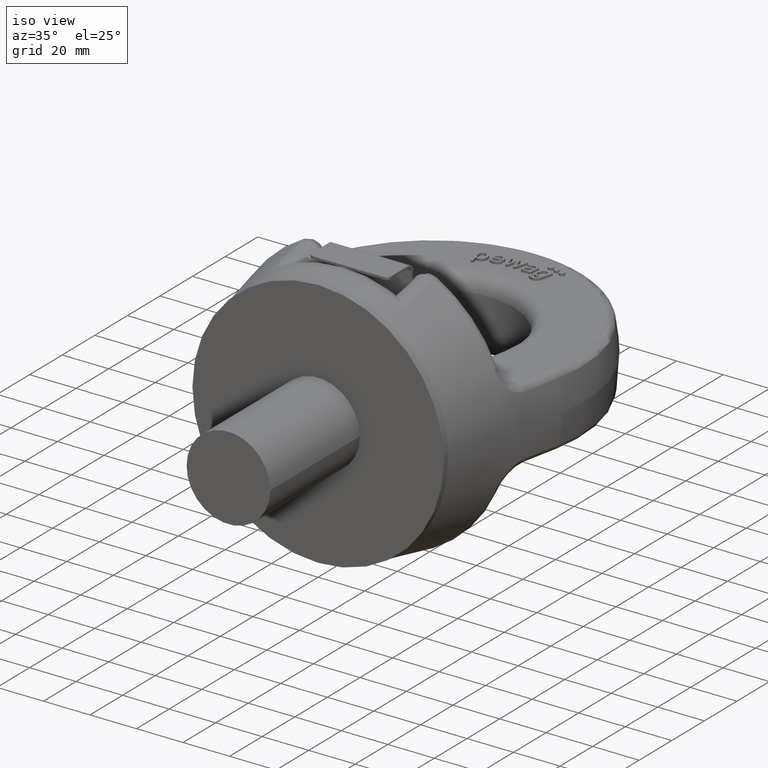
[diagram: clean part render]
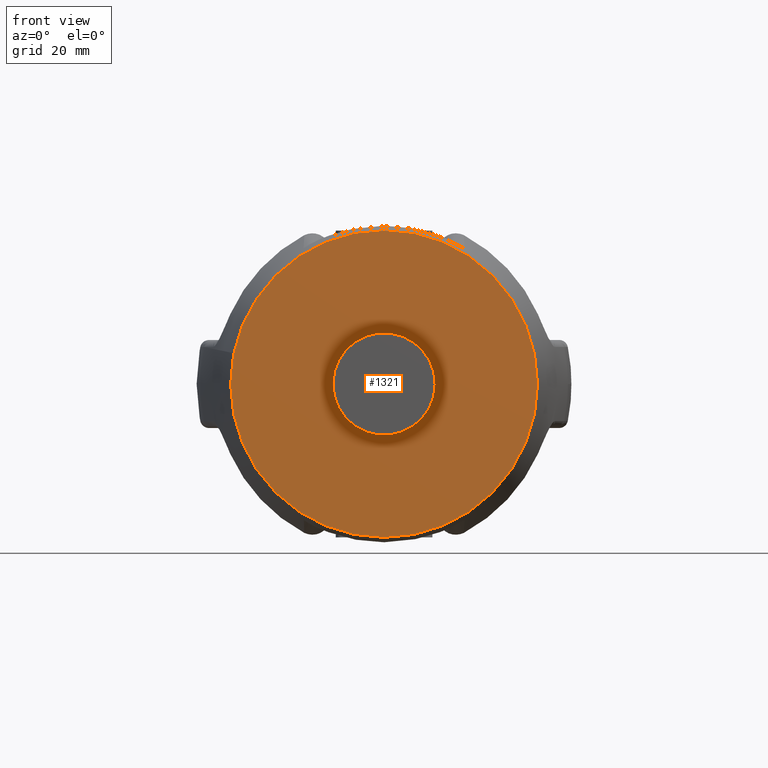
[diagram: tour spotlight — one face highlighted and labeled with its STEP entity id]
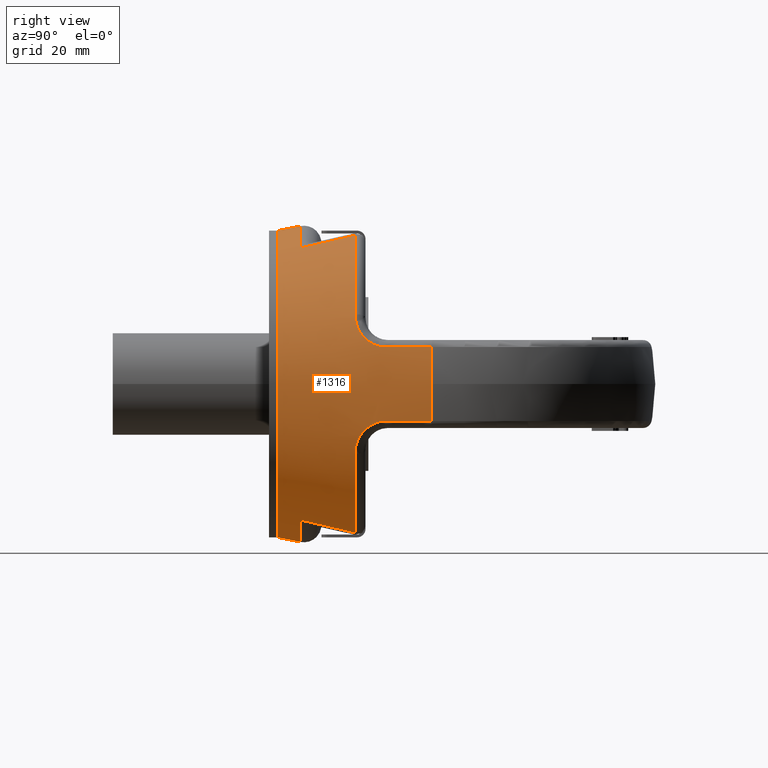
[diagram: tour spotlight — one face highlighted and labeled with its STEP entity id]
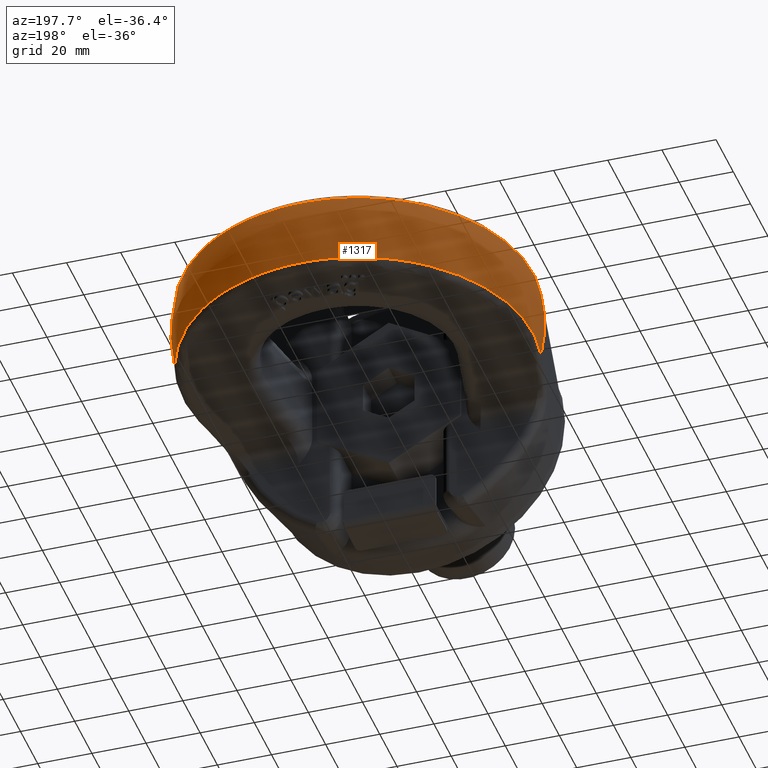
[diagram: tour spotlight — one face highlighted and labeled with its STEP entity id]
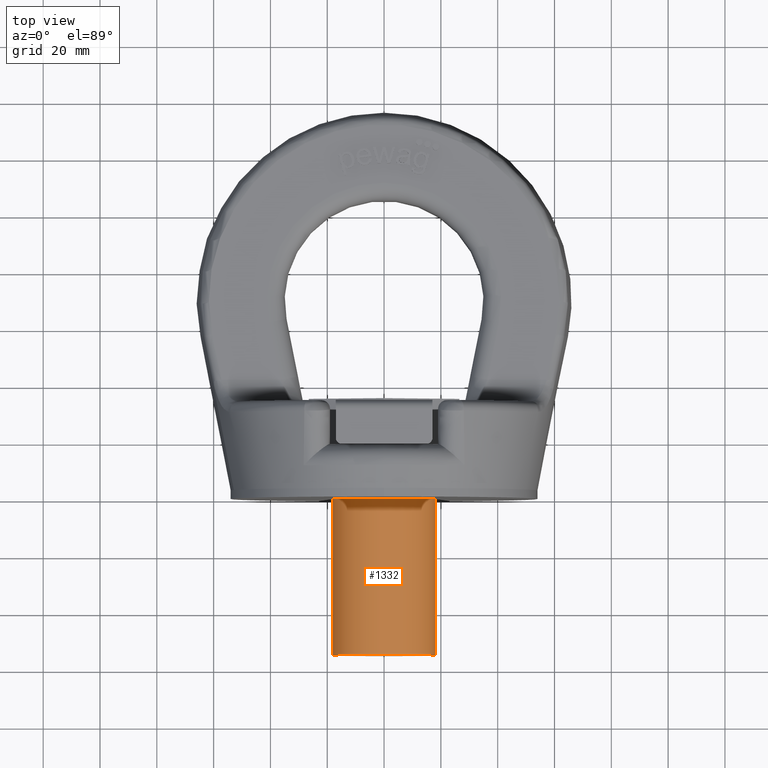
[diagram: tour spotlight — one face highlighted and labeled with its STEP entity id]
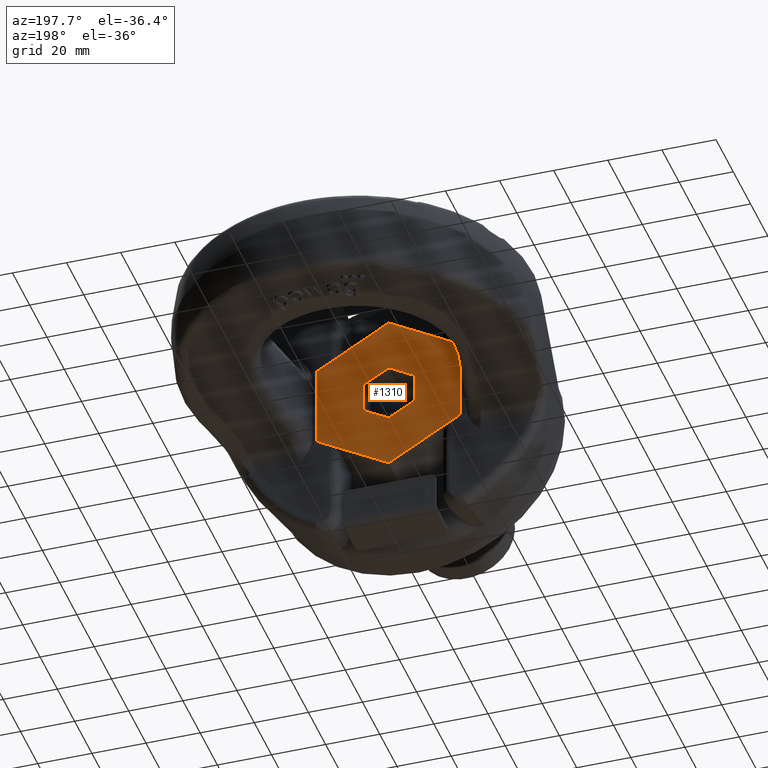
[diagram: tour spotlight — one face highlighted and labeled with its STEP entity id]
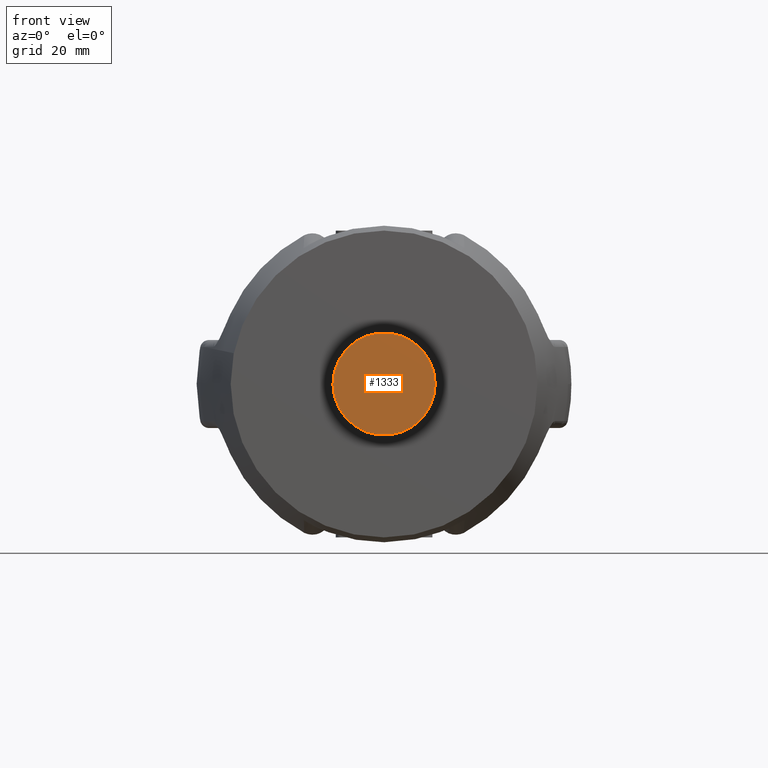
[diagram: tour spotlight — one face highlighted and labeled with its STEP entity id]
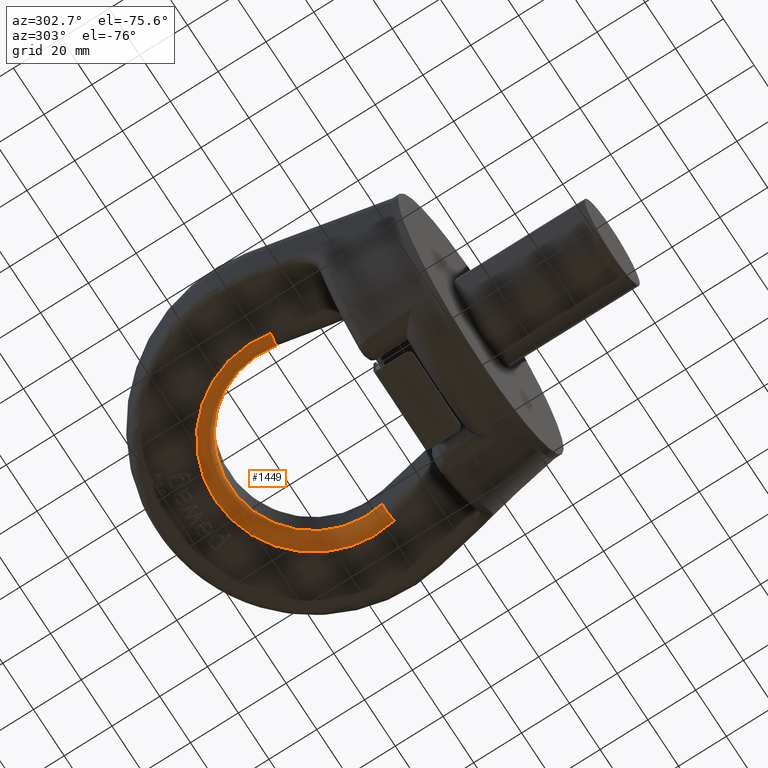
[diagram: tour spotlight — one face highlighted and labeled with its STEP entity id]
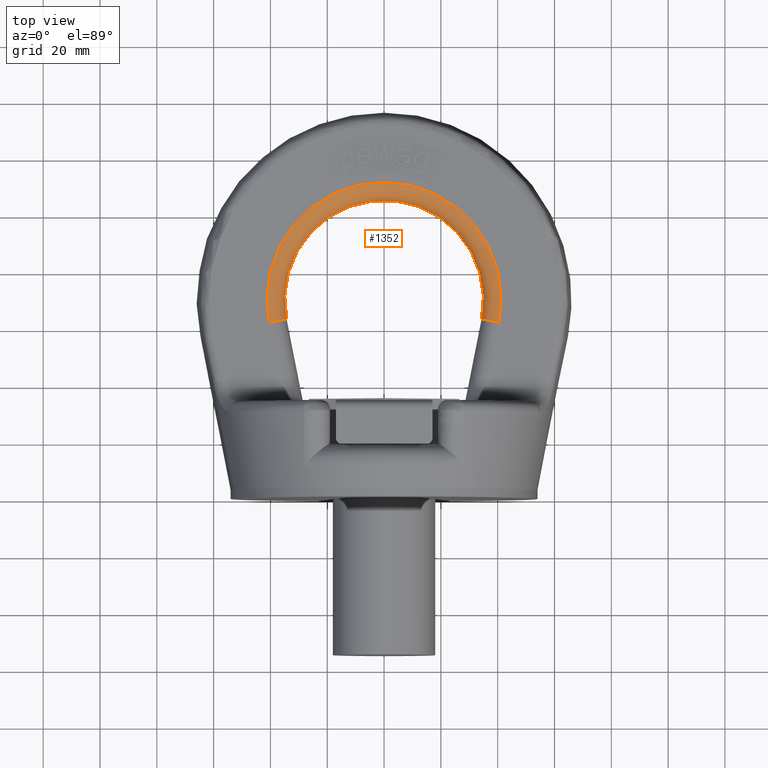
[diagram: tour spotlight — one face highlighted and labeled with its STEP entity id]
A machine part: a face-by-face anatomy tour. The part has 239 B-rep faces; the first image is the clean iso view, then the 8 largest visible faces are spotlighted one at a time (largest first), each with its STEP entity span.

Face 1 — front view, entity #1321. In plain terms, the highlighted planar face has unit normal (0, 1, 0).
Definition (entity closure, byte-faithful):
#1321=ADVANCED_FACE('',(#1769,#1770),#1557,.F.);
#1557=PLANE('',#5158);
#1689=CIRCLE('',#5156,54.0000000000001);
#1690=CIRCLE('',#5157,18.);
#1769=FACE_BOUND('',#1834,.T.);
#1770=FACE_BOUND('',#1835,.T.);
#1834=EDGE_LOOP('',(#2851));
#1835=EDGE_LOOP('',(#2852));
#2851=ORIENTED_EDGE('',*,*,#4407,.F.);
#2852=ORIENTED_EDGE('',*,*,#4408,.T.);
#4011=VERTEX_POINT('',#6893);
#4012=VERTEX_POINT('',#6895);
#4407=EDGE_CURVE('',#4011,#4011,#1689,.T.);
#4408=EDGE_CURVE('',#4012,#4012,#1690,.T.);
#5156=AXIS2_PLACEMENT_3D('',#6892,#5531,#5532);
#5157=AXIS2_PLACEMENT_3D('',#6894,#5533,#5534);
#5158=AXIS2_PLACEMENT_3D('',#6896,#5535,#5536);
#5531=DIRECTION('',(0.,1.,0.));
#5532=DIRECTION('',(0.,0.,1.));
#5533=DIRECTION('',(0.,1.,0.));
#5534=DIRECTION('',(1.,0.,6.12323399573677E-17));
#5535=DIRECTION('',(0.,1.,0.));
#5536=DIRECTION('',(0.,0.,1.));
#6892=CARTESIAN_POINT('',(-1.27403500852703E-13,0.,1.28408172764622E-14));
#6893=CARTESIAN_POINT('',(-1.27403500852703E-13,0.,54.0000000000001));
#6894=CARTESIAN_POINT('',(0.,0.,0.));
#6895=CARTESIAN_POINT('',(18.,0.,1.10218211923262E-15));
#6896=CARTESIAN_POINT('',(0.,0.,0.));

Face 2 — right view, entity #1316. In plain terms, the highlighted conical surface has half-angle 11.215 deg.
Definition (entity closure, byte-faithful):
#1090=CONICAL_SURFACE('',#5143,53.4051529903416,11.2152716127686);
#1316=ADVANCED_FACE('',(#1767,#1768),#1090,.T.);
#1676=CIRCLE('',#5134,64.7396210534805);
#1677=CIRCLE('',#5135,59.4125254317);
#1678=CIRCLE('',#5136,55.604922213692);
#1679=CIRCLE('',#5137,59.4125254317);
#1680=CIRCLE('',#5138,64.7396210534805);
#1681=CIRCLE('',#5139,59.4125254317);
#1682=CIRCLE('',#5140,55.604922213692);
#1683=CIRCLE('',#5141,59.4125254317);
#1684=CIRCLE('',#5142,54.0000000000001);
#1767=FACE_BOUND('',#1828,.T.);
#1768=FACE_BOUND('',#1829,.T.);
#1828=EDGE_LOOP('',(#2810,#2811,#2812,#2813,#2814,#2815,#2816,#2817,#2818,
#2819,#2820,#2821,#2822,#2823,#2824,#2825,#2826,#2827,#2828,#2829));
#1829=EDGE_LOOP('',(#2830));
#2810=ORIENTED_EDGE('',*,*,#4372,.T.);
#2811=ORIENTED_EDGE('',*,*,#4373,.T.);
#2812=ORIENTED_EDGE('',*,*,#4374,.T.);
#2813=ORIENTED_EDGE('',*,*,#4375,.T.);
#2814=ORIENTED_EDGE('',*,*,#4376,.T.);
#2815=ORIENTED_EDGE('',*,*,#4377,.T.);
#2816=ORIENTED_EDGE('',*,*,#4378,.T.);
#2817=ORIENTED_EDGE('',*,*,#4379,.T.);
#2818=ORIENTED_EDGE('',*,*,#4380,.T.);
#2819=ORIENTED_EDGE('',*,*,#4381,.T.);
#2820=ORIENTED_EDGE('',*,*,#4382,.T.);
#2821=ORIENTED_EDGE('',*,*,#4383,.T.);
#2822=ORIENTED_EDGE('',*,*,#4384,.T.);
#2823=ORIENTED_EDGE('',*,*,#4385,.T.);
#2824=ORIENTED_EDGE('',*,*,#4386,.T.);
#2825=ORIENTED_EDGE('',*,*,#4387,.T.);
#2826=ORIENTED_EDGE('',*,*,#4388,.T.);
#2827=ORIENTED_EDGE('',*,*,#4389,.T.);
#2828=ORIENTED_EDGE('',*,*,#4390,.T.);
#2829=ORIENTED_EDGE('',*,*,#4391,.T.);
#2830=ORIENTED_EDGE('',*,*,#4392,.F.);
#3982=VERTEX_POINT('',#6756);
#3983=VERTEX_POINT('',#6757);
#3984=VERTEX_POINT('',#6765);
#3985=VERTEX_POINT('',#6772);
#3986=VERTEX_POINT('',#6774);
#3987=VERTEX_POINT('',#6782);
#3988=VERTEX_POINT('',#6784);
#3989=VERTEX_POINT('',#6792);
#3990=VERTEX_POINT('',#6794);
#3991=VERTEX_POINT('',#6801);
#3992=VERTEX_POINT('',#6809);
#3993=VERTEX_POINT('',#6811);
#3994=VERTEX_POINT('',#6819);
#3995=VERTEX_POINT('',#6826);
#3996=VERTEX_POINT('',#6828);
#3997=VERTEX_POINT('',#6836);
#3998=VERTEX_POINT('',#6838);
#3999=VERTEX_POINT('',#6846);
#4000=VERTEX_POINT('',#6848);
#4001=VERTEX_POINT('',#6855);
#4002=VERTEX_POINT('',#6864);
#4372=EDGE_CURVE('',#3982,#3983,#1676,.T.);
#4373=EDGE_CURVE('',#3983,#3984,#4887,.T.);
#4374=EDGE_CURVE('',#3984,#3985,#4888,.T.);
#4375=EDGE_CURVE('',#3985,#3986,#1677,.T.);
#4376=EDGE_CURVE('',#3986,#3987,#4889,.T.);
#4377=EDGE_CURVE('',#3987,#3988,#1678,.T.);
#4378=EDGE_CURVE('',#3988,#3989,#4890,.T.);
#4379=EDGE_CURVE('',#3989,#3990,#1679,.T.);
#4380=EDGE_CURVE('',#3990,#3991,#4891,.T.);
#4381=EDGE_CURVE('',#3991,#3992,#4892,.T.);
#4382=EDGE_CURVE('',#3992,#3993,#1680,.T.);
#4383=EDGE_CURVE('',#3993,#3994,#4893,.T.);
#4384=EDGE_CURVE('',#3994,#3995,#4894,.T.);
#4385=EDGE_CURVE('',#3995,#3996,#1681,.T.);
#4386=EDGE_CURVE('',#3996,#3997,#4895,.T.);
#4387=EDGE_CURVE('',#3997,#3998,#1682,.T.);
#4388=EDGE_CURVE('',#3998,#3999,#4896,.T.);
#4389=EDGE_CURVE('',#3999,#4000,#1683,.T.);
#4390=EDGE_CURVE('',#4000,#4001,#4897,.T.);
#4391=EDGE_CURVE('',#4001,#3982,#4898,.T.);
#4392=EDGE_CURVE('',#4002,#4002,#1684,.T.);
#4887=B_SPLINE_CURVE_WITH_KNOTS('',3,(#6758,#6759,#6760,#6761,#6762,#6763,
#6764),.UNSPECIFIED.,.F.,.F.,(4,3,4),(0.,0.379363139222481,1.),
 .UNSPECIFIED.);
#4888=B_SPLINE_CURVE_WITH_KNOTS('',3,(#6766,#6767,#6768,#6769,#6770,#6771),
 .UNSPECIFIED.,.F.,.F.,(4,2,4),(0.,0.5,1.),.UNSPECIFIED.);
#4889=B_SPLINE_CURVE_WITH_KNOTS('',3,(#6775,#6776,#6777,#6778,#6779,#6780,
#6781),.UNSPECIFIED.,.F.,.F.,(4,3,4),(0.,0.244249562483357,1.),
 .UNSPECIFIED.);
#4890=B_SPLINE_CURVE_WITH_KNOTS('',3,(#6785,#6786,#6787,#6788,#6789,#6790,
#6791),.UNSPECIFIED.,.F.,.F.,(4,3,4),(0.,0.755750437516643,1.),
 .UNSPECIFIED.);
#4891=B_SPLINE_CURVE_WITH_KNOTS('',3,(#6795,#6796,#6797,#6798,#6799,#6800),
 .UNSPECIFIED.,.F.,.F.,(4,2,4),(0.,0.5,1.),.UNSPECIFIED.);
#4892=B_SPLINE_CURVE_WITH_KNOTS('',3,(#6802,#6803,#6804,#6805,#6806,#6807,
#6808),.UNSPECIFIED.,.F.,.F.,(4,3,4),(0.,0.379363140123715,1.),
 .UNSPECIFIED.);
#4893=B_SPLINE_CURVE_WITH_KNOTS('',3,(#6812,#6813,#6814,#6815,#6816,#6817,
#6818),.UNSPECIFIED.,.F.,.F.,(4,3,4),(0.,0.379363139222481,1.),
 .UNSPECIFIED.);
#4894=B_SPLINE_CURVE_WITH_KNOTS('',3,(#6820,#6821,#6822,#6823,#6824,#6825),
 .UNSPECIFIED.,.F.,.F.,(4,2,4),(0.,0.5,1.),.UNSPECIFIED.);
#4895=B_SPLINE_CURVE_WITH_KNOTS('',3,(#6829,#6830,#6831,#6832,#6833,#6834,
#6835),.UNSPECIFIED.,.F.,.F.,(4,3,4),(0.,0.244249562483357,1.),
 .UNSPECIFIED.);
#4896=B_SPLINE_CURVE_WITH_KNOTS('',3,(#6839,#6840,#6841,#6842,#6843,#6844,
#6845),.UNSPECIFIED.,.F.,.F.,(4,3,4),(0.,0.755750437516643,1.),
 .UNSPECIFIED.);
#4897=B_SPLINE_CURVE_WITH_KNOTS('',3,(#6849,#6850,#6851,#6852,#6853,#6854),
 .UNSPECIFIED.,.F.,.F.,(4,2,4),(0.,0.5,1.),.UNSPECIFIED.);
#4898=B_SPLINE_CURVE_WITH_KNOTS('',3,(#6856,#6857,#6858,#6859,#6860,#6861,
#6862),.UNSPECIFIED.,.F.,.F.,(4,3,4),(0.,0.379363140123715,1.),
 .UNSPECIFIED.);
#5134=AXIS2_PLACEMENT_3D('',#6755,#5481,#5482);
#5135=AXIS2_PLACEMENT_3D('',#6773,#5483,#5484);
#5136=AXIS2_PLACEMENT_3D('',#6783,#5485,#5486);
#5137=AXIS2_PLACEMENT_3D('',#6793,#5487,#5488);
#5138=AXIS2_PLACEMENT_3D('',#6810,#5489,#5490);
#5139=AXIS2_PLACEMENT_3D('',#6827,#5491,#5492);
#5140=AXIS2_PLACEMENT_3D('',#6837,#5493,#5494);
#5141=AXIS2_PLACEMENT_3D('',#6847,#5495,#5496);
#5142=AXIS2_PLACEMENT_3D('',#6863,#5497,#5498);
#5143=AXIS2_PLACEMENT_3D('',#6865,#5499,#5500);
#5481=DIRECTION('',(-9.36790447446346E-16,-1.,0.));
#5482=DIRECTION('',(1.,-9.646340852625E-16,0.));
#5483=DIRECTION('',(0.,-1.,0.));
#5484=DIRECTION('',(-2.34291072916505E-15,0.,1.));
#5485=DIRECTION('',(-1.82602471155453E-16,-1.,-4.27821288842163E-31));
#5486=DIRECTION('',(-1.,1.87183803906085E-16,-2.34291072916505E-15));
#5487=DIRECTION('',(0.,-1.,0.));
#5488=DIRECTION('',(-2.34291072916505E-15,0.,1.));
#5489=DIRECTION('',(-9.36790447446346E-16,-1.,0.));
#5490=DIRECTION('',(1.,-9.646340852625E-16,0.));
#5491=DIRECTION('',(0.,-1.,0.));
#5492=DIRECTION('',(0.,0.,-1.));
#5493=DIRECTION('',(1.82602471155453E-16,-1.,0.));
#5494=DIRECTION('',(1.,1.87183803906085E-16,0.));
#5495=DIRECTION('',(0.,-1.,0.));
#5496=DIRECTION('',(0.,0.,-1.));
#5497=DIRECTION('',(0.,-1.,0.));
#5498=DIRECTION('',(0.,0.,1.));
#5499=DIRECTION('',(9.36790447446346E-16,1.,0.));
#5500=DIRECTION('',(-1.,6.61667586243656E-16,0.));
#6755=CARTESIAN_POINT('',(-7.38534893235432E-14,57.1632766699694,0.));
#6756=CARTESIAN_POINT('',(-63.4186807031407,57.1632766699695,13.0111287758347));
#6757=CARTESIAN_POINT('',(-63.4186807031405,57.1632766699693,-13.0111287758348));
#6758=CARTESIAN_POINT('',(-63.4186807031405,57.1632766699693,-13.0111287758348));
#6759=CARTESIAN_POINT('',(-63.0078934406737,55.1378509972426,-13.01510669734));
#6760=CARTESIAN_POINT('',(-62.5969211799906,53.1124629856776,-13.0191621927448));
#6761=CARTESIAN_POINT('',(-62.1857517138848,51.0871151875316,-13.0232999810817));
#6762=CARTESIAN_POINT('',(-61.5130798130041,47.7736528182886,-13.0300693892586));
#6763=CARTESIAN_POINT('',(-60.839880550286,44.4602978964335,-13.0370588885096));
#6764=CARTESIAN_POINT('',(-60.1660939651095,41.1470629951046,-13.0442914374048));
#6765=CARTESIAN_POINT('',(-60.1660939651095,41.1470629951046,-13.0442914374048));
#6766=CARTESIAN_POINT('',(-60.1660939651095,41.1470629951046,-13.0442914374048));
#6767=CARTESIAN_POINT('',(-59.5423652720733,38.0799795592027,-13.0509866556964));
#6768=CARTESIAN_POINT('',(-58.680193108066,35.2136003947081,-14.4564697578865));
#6769=CARTESIAN_POINT('',(-56.6077832522743,31.2998081939542,-18.8358735027217));
#6770=CARTESIAN_POINT('',(-55.4106888689562,30.2970629951046,-21.6619016092632));
#6771=CARTESIAN_POINT('',(-54.1238838436104,30.2970629951046,-24.5041501761592));
#6772=CARTESIAN_POINT('',(-54.1238838436104,30.2970629951046,-24.5041501761592));
#6773=CARTESIAN_POINT('',(9.90215016532088E-14,30.2970629951047,2.31998538641337E-28));
#6774=CARTESIAN_POINT('',(-28.0736861446427,30.2970629951046,-52.3614010930236));
#6775=CARTESIAN_POINT('',(-28.0736861446427,30.2970629951046,-52.3614010930236));
#6776=CARTESIAN_POINT('',(-28.0904026339223,28.7324720021094,-52.0004312589697));
#6777=CARTESIAN_POINT('',(-28.1074080673949,27.1681330642224,-51.638380207237));
#6778=CARTESIAN_POINT('',(-28.1247177290099,25.6040670392467,-51.2751702368287));
#6779=CARTESIAN_POINT('',(-28.1782766823272,20.7645883087915,-50.1513385708942));
#6780=CARTESIAN_POINT('',(-28.234740287178,15.9276825011773,-49.0164714114988));
#6781=CARTESIAN_POINT('',(-28.2946296575564,11.0941259902093,-47.8677480871251));
#6782=CARTESIAN_POINT('',(-28.2946296575564,11.0941259902093,-47.8677480871251));
#6783=CARTESIAN_POINT('',(1.17010629602309E-13,11.0941259902092,2.74145459521607E-28));
#6784=CARTESIAN_POINT('',(28.2946296575566,11.0941259902093,-47.8677480871251));
#6785=CARTESIAN_POINT('',(28.2946296575566,11.0941259902093,-47.8677480871251));
#6786=CARTESIAN_POINT('',(28.2347402871782,15.9276825011773,-49.0164714114988));
#6787=CARTESIAN_POINT('',(28.1782766823274,20.7645883087915,-50.1513385708942));
#6788=CARTESIAN_POINT('',(28.1247177290101,25.6040670392467,-51.2751702368287));
#6789=CARTESIAN_POINT('',(28.1074080673952,27.1681330642224,-51.638380207237));
#6790=CARTESIAN_POINT('',(28.0904026339225,28.7324720021094,-52.0004312589697));
#6791=CARTESIAN_POINT('',(28.0736861446429,30.2970629951046,-52.3614010930235));
#6792=CARTESIAN_POINT('',(28.0736861446429,30.2970629951046,-52.3614010930235));
#6793=CARTESIAN_POINT('',(9.90215016532088E-14,30.2970629951047,2.31998538641337E-28));
#6794=CARTESIAN_POINT('',(54.1238838436106,30.2970629951046,-24.5041501761589));
#6795=CARTESIAN_POINT('',(54.1238838436106,30.2970629951046,-24.5041501761589));
#6796=CARTESIAN_POINT('',(55.409630876261,30.2970629951046,-21.6642384654013));
#6797=CARTESIAN_POINT('',(56.621911743511,31.3239687166793,-18.8052768057178));
#6798=CARTESIAN_POINT('',(58.6725508100254,35.2016971793536,-14.47336221587));
#6799=CARTESIAN_POINT('',(59.5430873840609,38.0835304263349,-13.0509789044135));
#6800=CARTESIAN_POINT('',(60.1660939651097,41.1470629951046,-13.0442914374045));
#6801=CARTESIAN_POINT('',(60.1660939651097,41.1470629951046,-13.0442914374045));
#6802=CARTESIAN_POINT('',(60.1660939651097,41.1470629951046,-13.0442914374045));
#6803=CARTESIAN_POINT('',(60.577944780553,43.1722717568818,-13.0398705551463));
#6804=CARTESIAN_POINT('',(60.9895759875954,45.1975253897035,-13.0355405413444));
#6805=CARTESIAN_POINT('',(61.4010016648464,47.2228209393158,-13.0312960178713));
#6806=CARTESIAN_POINT('',(62.0740927250081,50.5361978236598,-13.0243519913742));
#6807=CARTESIAN_POINT('',(62.7466340864869,53.8496868997662,-13.017636642395));
#6808=CARTESIAN_POINT('',(63.4186807031407,57.1632766699695,-13.0111287758345));
#6809=CARTESIAN_POINT('',(63.4186807031407,57.1632766699695,-13.0111287758345));
#6810=CARTESIAN_POINT('',(-7.38534893235432E-14,57.1632766699694,0.));
#6811=CARTESIAN_POINT('',(63.4186807031406,57.1632766699693,13.0111287758347));
#6812=CARTESIAN_POINT('',(63.4186807031406,57.1632766699693,13.0111287758347));
#6813=CARTESIAN_POINT('',(63.0078934406738,55.1378509972426,13.0151066973399));
#6814=CARTESIAN_POINT('',(62.5969211799906,53.1124629856776,13.0191621927447));
#6815=CARTESIAN_POINT('',(62.1857517138848,51.0871151875316,13.0232999810815));
#6816=CARTESIAN_POINT('',(61.5130798130041,47.7736528182886,13.0300693892585));
#6817=CARTESIAN_POINT('',(60.839880550286,44.4602978964335,13.0370588885095));
#6818=CARTESIAN_POINT('',(60.1660939651095,41.1470629951046,13.0442914374046));
#6819=CARTESIAN_POINT('',(60.1660939651095,41.1470629951046,13.0442914374046));
#6820=CARTESIAN_POINT('',(60.1660939651095,41.1470629951046,13.0442914374046));
#6821=CARTESIAN_POINT('',(59.5423652720733,38.0799795592027,13.0509866556962));
#6822=CARTESIAN_POINT('',(58.680193108066,35.2136003947081,14.4564697578864));
#6823=CARTESIAN_POINT('',(56.6077832522743,31.2998081939542,18.8358735027216));
#6824=CARTESIAN_POINT('',(55.4106888689563,30.2970629951046,21.6619016092631));
#6825=CARTESIAN_POINT('',(54.1238838436104,30.2970629951046,24.5041501761591));
#6826=CARTESIAN_POINT('',(54.1238838436104,30.2970629951046,24.5041501761591));
#6827=CARTESIAN_POINT('',(-9.90215016532088E-14,30.2970629951047,0.));
#6828=CARTESIAN_POINT('',(28.0736861446428,30.2970629951046,52.3614010930235));
#6829=CARTESIAN_POINT('',(28.0736861446428,30.2970629951046,52.3614010930235));
#6830=CARTESIAN_POINT('',(28.0904026339224,28.7324720021094,52.0004312589696));
#6831=CARTESIAN_POINT('',(28.107408067395,27.1681330642224,51.6383802072369));
#6832=CARTESIAN_POINT('',(28.12471772901,25.6040670392467,51.2751702368287));
#6833=CARTESIAN_POINT('',(28.1782766823273,20.7645883087915,50.1513385708941));
#6834=CARTESIAN_POINT('',(28.2347402871781,15.9276825011773,49.0164714114987));
#6835=CARTESIAN_POINT('',(28.2946296575565,11.0941259902093,47.867748087125));
#6836=CARTESIAN_POINT('',(28.2946296575565,11.0941259902093,47.867748087125));
#6837=CARTESIAN_POINT('',(-1.17010629602309E-13,11.0941259902092,0.));
#6838=CARTESIAN_POINT('',(-28.2946296575565,11.0941259902093,47.8677480871251));
#6839=CARTESIAN_POINT('',(-28.2946296575565,11.0941259902093,47.8677480871251));
#6840=CARTESIAN_POINT('',(-28.2347402871781,15.9276825011773,49.0164714114988));
#6841=CARTESIAN_POINT('',(-28.1782766823273,20.7645883087915,50.1513385708943));
#6842=CARTESIAN_POINT('',(-28.12471772901,25.6040670392467,51.2751702368288));
#6843=CARTESIAN_POINT('',(-28.107408067395,27.1681330642224,51.6383802072371));
#6844=CARTESIAN_POINT('',(-28.0904026339224,28.7324720021094,52.0004312589697));
#6845=CARTESIAN_POINT('',(-28.0736861446428,30.2970629951046,52.3614010930236));
#6846=CARTESIAN_POINT('',(-28.0736861446428,30.2970629951046,52.3614010930236));
#6847=CARTESIAN_POINT('',(-9.90215016532088E-14,30.2970629951047,0.));
#6848=CARTESIAN_POINT('',(-54.1238838436106,30.2970629951046,24.5041501761591));
#6849=CARTESIAN_POINT('',(-54.1238838436106,30.2970629951046,24.5041501761591));
#6850=CARTESIAN_POINT('',(-55.409630876261,30.2970629951046,21.6642384654015));
#6851=CARTESIAN_POINT('',(-56.621911743511,31.3239687166793,18.805276805718));
#6852=CARTESIAN_POINT('',(-58.6725508100254,35.2016971793535,14.4733622158702));
#6853=CARTESIAN_POINT('',(-59.5430873840609,38.0835304263349,13.0509789044136));
#6854=CARTESIAN_POINT('',(-60.1660939651097,41.1470629951046,13.0442914374046));
#6855=CARTESIAN_POINT('',(-60.1660939651097,41.1470629951046,13.0442914374046));
#6856=CARTESIAN_POINT('',(-60.1660939651097,41.1470629951046,13.0442914374046));
#6857=CARTESIAN_POINT('',(-60.5779447805529,43.1722717568818,13.0398705551465));
#6858=CARTESIAN_POINT('',(-60.9895759875954,45.1975253897035,13.0355405413446));
#6859=CARTESIAN_POINT('',(-61.4010016648464,47.2228209393158,13.0312960178714));
#6860=CARTESIAN_POINT('',(-62.0740927250081,50.5361978236598,13.0243519913744));
#6861=CARTESIAN_POINT('',(-62.7466340864869,53.8496868997662,13.0176366423952));
#6862=CARTESIAN_POINT('',(-63.4186807031407,57.1632766699695,13.0111287758347));
#6863=CARTESIAN_POINT('',(-1.27403500852703E-13,3.00000000000004,1.28408172764622E-14));
#6864=CARTESIAN_POINT('',(-1.27403500852703E-13,3.00000000000004,54.0000000000001));
#6865=CARTESIAN_POINT('',(-1.27403500852703E-13,5.55111512312578E-14,0.));

Face 3 — auxiliary view, entity #1317. In plain terms, the highlighted spherical surface has radius 66 mm.
Definition (entity closure, byte-faithful):
#1089=SPHERICAL_SURFACE('',#5146,66.);
#1096=FACE_OUTER_BOUND('',#1830,.T.);
#1317=ADVANCED_FACE('',(#1096),#1089,.T.);
#1676=CIRCLE('',#5134,64.7396210534805);
#1680=CIRCLE('',#5138,64.7396210534805);
#1685=CIRCLE('',#5144,64.7047952471735);
#1686=CIRCLE('',#5145,64.7047952471735);
#1830=EDGE_LOOP('',(#2831,#2832,#2833,#2834));
#2831=ORIENTED_EDGE('',*,*,#4372,.F.);
#2832=ORIENTED_EDGE('',*,*,#4393,.T.);
#2833=ORIENTED_EDGE('',*,*,#4382,.F.);
#2834=ORIENTED_EDGE('',*,*,#4394,.T.);
#3982=VERTEX_POINT('',#6756);
#3983=VERTEX_POINT('',#6757);
#3992=VERTEX_POINT('',#6809);
#3993=VERTEX_POINT('',#6811);
#4372=EDGE_CURVE('',#3982,#3983,#1676,.T.);
#4382=EDGE_CURVE('',#3992,#3993,#1680,.T.);
#4393=EDGE_CURVE('',#3982,#3993,#1685,.T.);
#4394=EDGE_CURVE('',#3992,#3983,#1686,.T.);
#5134=AXIS2_PLACEMENT_3D('',#6755,#5481,#5482);
#5138=AXIS2_PLACEMENT_3D('',#6810,#5489,#5490);
#5144=AXIS2_PLACEMENT_3D('',#6866,#5501,#5502);
#5145=AXIS2_PLACEMENT_3D('',#6867,#5503,#5504);
#5146=AXIS2_PLACEMENT_3D('',#6868,#5505,#5506);
#5481=DIRECTION('',(-9.36790447446346E-16,-1.,0.));
#5482=DIRECTION('',(1.,-9.646340852625E-16,0.));
#5489=DIRECTION('',(-9.36790447446346E-16,-1.,0.));
#5490=DIRECTION('',(1.,-9.646340852625E-16,0.));
#5501=DIRECTION('',(0.,-1.54886024640786E-16,-1.));
#5502=DIRECTION('',(0.,1.,-1.60858879409181E-16));
#5503=DIRECTION('',(-2.34291072916505E-15,-1.54886024640786E-16,1.));
#5504=DIRECTION('',(-3.80990360822346E-31,1.,1.60858879409181E-16));
#5505=DIRECTION('',(-8.75558107488978E-16,-1.,0.));
#5506=DIRECTION('',(1.,-8.41078048958452E-16,0.));
#6755=CARTESIAN_POINT('',(-7.38534893235432E-14,57.1632766699694,0.));
#6756=CARTESIAN_POINT('',(-63.4186807031407,57.1632766699695,13.0111287758347));
#6757=CARTESIAN_POINT('',(-63.4186807031405,57.1632766699693,-13.0111287758348));
#6809=CARTESIAN_POINT('',(63.4186807031407,57.1632766699695,-13.0111287758345));
#6810=CARTESIAN_POINT('',(-7.38534893235432E-14,57.1632766699694,0.));
#6811=CARTESIAN_POINT('',(63.4186807031406,57.1632766699693,13.0111287758347));
#6866=CARTESIAN_POINT('',(-1.38050658413677E-30,70.,13.0111287758347));
#6867=CARTESIAN_POINT('',(3.04839132074511E-14,70.,-13.0111287758347));
#6868=CARTESIAN_POINT('',(-1.38050658413677E-30,70.,0.));

Face 4 — top view, entity #1332. In plain terms, the highlighted cylindrical surface (bore or boss wall) has radius 18 mm, axis along (0, 1, 0).
Definition (entity closure, byte-faithful):
#1058=CYLINDRICAL_SURFACE('',#5172,18.);
#1332=ADVANCED_FACE('',(#1773,#1774),#1058,.T.);
#1690=CIRCLE('',#5157,18.);
#1691=CIRCLE('',#5171,18.);
#1773=FACE_BOUND('',#1847,.T.);
#1774=FACE_BOUND('',#1848,.T.);
#1847=EDGE_LOOP('',(#2899));
#1848=EDGE_LOOP('',(#2900));
#2899=ORIENTED_EDGE('',*,*,#4427,.T.);
#2900=ORIENTED_EDGE('',*,*,#4408,.F.);
#4012=VERTEX_POINT('',#6895);
#4019=VERTEX_POINT('',#6932);
#4408=EDGE_CURVE('',#4012,#4012,#1690,.T.);
#4427=EDGE_CURVE('',#4019,#4019,#1691,.T.);
#5157=AXIS2_PLACEMENT_3D('',#6894,#5533,#5534);
#5171=AXIS2_PLACEMENT_3D('',#6931,#5577,#5578);
#5172=AXIS2_PLACEMENT_3D('',#6933,#5579,#5580);
#5533=DIRECTION('',(0.,1.,0.));
#5534=DIRECTION('',(1.,0.,6.12323399573677E-17));
#5577=DIRECTION('',(0.,1.,0.));
#5578=DIRECTION('',(1.,0.,6.12323399573677E-17));
#5579=DIRECTION('',(0.,1.,0.));
#5580=DIRECTION('',(0.,0.,1.));
#6894=CARTESIAN_POINT('',(0.,0.,0.));
#6895=CARTESIAN_POINT('',(18.,0.,1.10218211923262E-15));
#6931=CARTESIAN_POINT('',(0.,-55.,0.));
#6932=CARTESIAN_POINT('',(18.,-55.,1.10218211923262E-15));
#6933=CARTESIAN_POINT('',(0.,-55.,0.));

Face 5 — auxiliary view, entity #1310. In plain terms, the highlighted planar face has unit normal (0, -1, 0).
Definition (entity closure, byte-faithful):
#1310=ADVANCED_FACE('',(#1765,#1766),#1549,.F.);
#1549=PLANE('',#5123);
#1765=FACE_BOUND('',#1821,.T.);
#1766=FACE_BOUND('',#1822,.T.);
#1821=EDGE_LOOP('',(#2755,#2756,#2757,#2758,#2759,#2760));
#1822=EDGE_LOOP('',(#2761,#2762,#2763,#2764,#2765,#2766));
#2113=LINE('',#6529,#2393);
#2114=LINE('',#6532,#2394);
#2115=LINE('',#6534,#2395);
#2116=LINE('',#6536,#2396);
#2117=LINE('',#6538,#2397);
#2118=LINE('',#6540,#2398);
#2119=LINE('',#6541,#2399);
#2120=LINE('',#6544,#2400);
#2121=LINE('',#6546,#2401);
#2122=LINE('',#6548,#2402);
#2123=LINE('',#6550,#2403);
#2124=LINE('',#6552,#2404);
#2393=VECTOR('',#5423,1.);
#2394=VECTOR('',#5424,1.);
#2395=VECTOR('',#5425,1.);
#2396=VECTOR('',#5426,1.);
#2397=VECTOR('',#5427,1.);
#2398=VECTOR('',#5428,1.);
#2399=VECTOR('',#5429,1.);
#2400=VECTOR('',#5430,1.);
#2401=VECTOR('',#5431,1.);
#2402=VECTOR('',#5432,1.);
#2403=VECTOR('',#5433,1.);
#2404=VECTOR('',#5434,1.);
#2755=ORIENTED_EDGE('',*,*,#4319,.F.);
#2756=ORIENTED_EDGE('',*,*,#4320,.F.);
#2757=ORIENTED_EDGE('',*,*,#4321,.F.);
#2758=ORIENTED_EDGE('',*,*,#4322,.F.);
#2759=ORIENTED_EDGE('',*,*,#4323,.F.);
#2760=ORIENTED_EDGE('',*,*,#4324,.F.);
#2761=ORIENTED_EDGE('',*,*,#4325,.F.);
#2762=ORIENTED_EDGE('',*,*,#4326,.F.);
#2763=ORIENTED_EDGE('',*,*,#4327,.F.);
#2764=ORIENTED_EDGE('',*,*,#4328,.F.);
#2765=ORIENTED_EDGE('',*,*,#4329,.F.);
#2766=ORIENTED_EDGE('',*,*,#4330,.F.);
#3931=VERTEX_POINT('',#6530);
#3932=VERTEX_POINT('',#6531);
#3933=VERTEX_POINT('',#6533);
#3934=VERTEX_POINT('',#6535);
#3935=VERTEX_POINT('',#6537);
#3936=VERTEX_POINT('',#6539);
#3937=VERTEX_POINT('',#6542);
#3938=VERTEX_POINT('',#6543);
#3939=VERTEX_POINT('',#6545);
#3940=VERTEX_POINT('',#6547);
#3941=VERTEX_POINT('',#6549);
#3942=VERTEX_POINT('',#6551);
#4319=EDGE_CURVE('',#3931,#3932,#2113,.T.);
#4320=EDGE_CURVE('',#3933,#3931,#2114,.T.);
#4321=EDGE_CURVE('',#3934,#3933,#2115,.T.);
#4322=EDGE_CURVE('',#3935,#3934,#2116,.T.);
#4323=EDGE_CURVE('',#3936,#3935,#2117,.T.);
#4324=EDGE_CURVE('',#3932,#3936,#2118,.T.);
#4325=EDGE_CURVE('',#3937,#3938,#2119,.T.);
#4326=EDGE_CURVE('',#3939,#3937,#2120,.T.);
#4327=EDGE_CURVE('',#3940,#3939,#2121,.T.);
#4328=EDGE_CURVE('',#3941,#3940,#2122,.T.);
#4329=EDGE_CURVE('',#3942,#3941,#2123,.T.);
#4330=EDGE_CURVE('',#3938,#3942,#2124,.T.);
#5123=AXIS2_PLACEMENT_3D('',#6553,#5435,#5436);
#5423=DIRECTION('',(0.,0.,1.));
#5424=DIRECTION('',(0.866025403784438,0.,0.5));
#5425=DIRECTION('',(0.866025403784441,0.,-0.499999999999996));
#5426=DIRECTION('',(0.,0.,-1.));
#5427=DIRECTION('',(-0.86602540378444,0.,-0.499999999999998));
#5428=DIRECTION('',(-0.866025403784439,0.,0.499999999999998));
#5429=DIRECTION('',(-0.866025403784439,0.,-0.5));
#5430=DIRECTION('',(-4.74415136443315E-16,0.,-1.));
#5431=DIRECTION('',(0.86602540378444,0.,-0.499999999999998));
#5432=DIRECTION('',(0.86602540378444,0.,0.499999999999998));
#5433=DIRECTION('',(-4.74415136443314E-16,0.,1.));
#5434=DIRECTION('',(-0.866025403784441,0.,0.499999999999996));
#5435=DIRECTION('',(0.,-1.,0.));
#5436=DIRECTION('',(0.,0.,-1.));
#6529=CARTESIAN_POINT('',(26.5,35.,-15.2997821335251));
#6530=CARTESIAN_POINT('',(26.5,35.,-15.299782133525));
#6531=CARTESIAN_POINT('',(26.5,35.,15.2997821335251));
#6532=CARTESIAN_POINT('',(7.16920474290471E-14,35.,-30.5995642670501));
#6533=CARTESIAN_POINT('',(6.47531535251399E-14,35.,-30.5995642670501));
#6534=CARTESIAN_POINT('',(-26.5,35.,-15.2997821335252));
#6535=CARTESIAN_POINT('',(-26.5,35.,-15.2997821335252));
#6536=CARTESIAN_POINT('',(-26.5,35.,15.2997821335251));
#6537=CARTESIAN_POINT('',(-26.5,35.,15.2997821335251));
#6538=CARTESIAN_POINT('',(0.,35.,30.5995642670501));
#6539=CARTESIAN_POINT('',(6.93889390390723E-15,35.,30.5995642670501));
#6540=CARTESIAN_POINT('',(26.5,35.,15.2997821335251));
#6541=CARTESIAN_POINT('',(2.57009226632433E-14,35.,-10.9696551146028));
#6542=CARTESIAN_POINT('',(9.50000000000002,35.,-5.48482755730141));
#6543=CARTESIAN_POINT('',(2.57009226632433E-14,35.,-10.9696551146028));
#6544=CARTESIAN_POINT('',(9.5,35.,-5.48482755730143));
#6545=CARTESIAN_POINT('',(9.5,35.,5.48482755730143));
#6546=CARTESIAN_POINT('',(9.5,35.,5.48482755730143));
#6547=CARTESIAN_POINT('',(0.,35.,10.9696551146028));
#6548=CARTESIAN_POINT('',(0.,35.,10.9696551146028));
#6549=CARTESIAN_POINT('',(-9.50000000000001,35.,5.48482755730143));
#6550=CARTESIAN_POINT('',(-9.5,35.,5.48482755730143));
#6551=CARTESIAN_POINT('',(-9.49999999999999,35.,-5.48482755730145));
#6552=CARTESIAN_POINT('',(-9.49999999999999,35.,-5.48482755730145));
#6553=CARTESIAN_POINT('',(0.,35.,0.));

Face 6 — front view, entity #1333. In plain terms, the highlighted planar face has unit normal (0, 1, 0).
Definition (entity closure, byte-faithful):
#1109=FACE_OUTER_BOUND('',#1849,.T.);
#1333=ADVANCED_FACE('',(#1109),#1567,.F.);
#1567=PLANE('',#5173);
#1691=CIRCLE('',#5171,18.);
#1849=EDGE_LOOP('',(#2901));
#2901=ORIENTED_EDGE('',*,*,#4427,.F.);
#4019=VERTEX_POINT('',#6932);
#4427=EDGE_CURVE('',#4019,#4019,#1691,.T.);
#5171=AXIS2_PLACEMENT_3D('',#6931,#5577,#5578);
#5173=AXIS2_PLACEMENT_3D('',#6934,#5581,#5582);
#5577=DIRECTION('',(0.,1.,0.));
#5578=DIRECTION('',(1.,0.,6.12323399573677E-17));
#5581=DIRECTION('',(0.,1.,0.));
#5582=DIRECTION('',(0.,0.,1.));
#6931=CARTESIAN_POINT('',(0.,-55.,0.));
#6932=CARTESIAN_POINT('',(18.,-55.,1.10218211923262E-15));
#6934=CARTESIAN_POINT('',(0.,-55.,0.));

Face 7 — auxiliary view, entity #1449. In plain terms, the highlighted toroidal blend (fillet) surface has major radius 41.2 mm and minor (blend) radius 6.2 mm.
Definition (entity closure, byte-faithful):
#1023=TOROIDAL_SURFACE('',#5284,41.2,6.2);
#1217=FACE_OUTER_BOUND('',#1980,.T.);
#1449=ADVANCED_FACE('',(#1217),#1023,.T.);
#1688=CIRCLE('',#5148,35.);
#1712=CIRCLE('',#5247,41.2);
#1726=CIRCLE('',#5281,6.2);
#1727=CIRCLE('',#5283,6.2);
#1980=EDGE_LOOP('',(#3437,#3438,#3439,#3440));
#3437=ORIENTED_EDGE('',*,*,#4659,.F.);
#3438=ORIENTED_EDGE('',*,*,#4398,.F.);
#3439=ORIENTED_EDGE('',*,*,#4660,.T.);
#3440=ORIENTED_EDGE('',*,*,#4600,.F.);
#4003=VERTEX_POINT('',#6870);
#4006=VERTEX_POINT('',#6875);
#4117=VERTEX_POINT('',#8227);
#4118=VERTEX_POINT('',#8228);
#4398=EDGE_CURVE('',#4006,#4003,#1688,.T.);
#4600=EDGE_CURVE('',#4117,#4118,#1712,.T.);
#4659=EDGE_CURVE('',#4003,#4117,#1726,.T.);
#4660=EDGE_CURVE('',#4006,#4118,#1727,.T.);
#5148=AXIS2_PLACEMENT_3D('',#6876,#5511,#5512);
#5247=AXIS2_PLACEMENT_3D('',#8226,#5828,#5829);
#5281=AXIS2_PLACEMENT_3D('',#8657,#5917,#5918);
#5283=AXIS2_PLACEMENT_3D('',#8659,#5921,#5922);
#5284=AXIS2_PLACEMENT_3D('',#8660,#5923,#5924);
#5511=DIRECTION('',(2.34291072916505E-15,1.54886024640786E-16,-1.));
#5512=DIRECTION('',(-3.52170046973666E-31,1.,1.48690583655155E-16));
#5828=DIRECTION('',(-2.34291072916505E-15,-1.54886024640786E-16,1.));
#5829=DIRECTION('',(-2.99173583594134E-31,1.,1.68419754949205E-16));
#5917=DIRECTION('',(-0.194495808030769,-0.980903349295158,-4.55686315412914E-16));
#5918=DIRECTION('',(0.980903349295157,-0.194495808030769,2.23835287222814E-15));
#5921=DIRECTION('',(-0.194495808030769,0.980903349295158,-4.55686315412914E-16));
#5922=DIRECTION('',(-0.980903349295158,-0.194495808030769,-2.23835287222814E-15));
#5923=DIRECTION('',(-2.34291072916505E-15,-1.54886024640786E-16,1.));
#5924=DIRECTION('',(-3.90061760888554E-31,1.,1.46390166749098E-16));
#6870=CARTESIAN_POINT('',(34.3316172253306,63.1926467189231,-9.29999999999994));
#6875=CARTESIAN_POINT('',(-34.3316172253305,63.1926467189231,-9.3000000000001));
#6876=CARTESIAN_POINT('',(2.1789069781235E-14,70.,-9.30000000000002));
#8226=CARTESIAN_POINT('',(3.63151163020583E-14,70.,-15.5));
#8227=CARTESIAN_POINT('',(40.4132179909606,61.9867727091324,-15.4999999999999));
#8228=CARTESIAN_POINT('',(-40.4132179909605,61.9867727091324,-15.5000000000001));
#8657=CARTESIAN_POINT('',(40.4132179909605,61.9867727091324,-9.29999999999992));
#8659=CARTESIAN_POINT('',(-40.4132179909605,61.9867727091324,-9.30000000000011));
#8660=CARTESIAN_POINT('',(2.1789069781235E-14,70.,-9.30000000000002));

Face 8 — top view, entity #1352. In plain terms, the highlighted toroidal blend (fillet) surface has major radius 41.2 mm and minor (blend) radius 6.2 mm.
Definition (entity closure, byte-faithful):
#1018=TOROIDAL_SURFACE('',#5198,41.2,6.2);
#1128=FACE_OUTER_BOUND('',#1868,.T.);
#1352=ADVANCED_FACE('',(#1128),#1018,.T.);
#1669=CIRCLE('',#5120,41.2);
#1687=CIRCLE('',#5147,35.);
#1703=CIRCLE('',#5195,6.2);
#1704=CIRCLE('',#5197,6.2);
#1868=EDGE_LOOP('',(#2976,#2977,#2978,#2979));
#2976=ORIENTED_EDGE('',*,*,#4447,.F.);
#2977=ORIENTED_EDGE('',*,*,#4396,.F.);
#2978=ORIENTED_EDGE('',*,*,#4448,.T.);
#2979=ORIENTED_EDGE('',*,*,#4296,.F.);
#3908=VERTEX_POINT('',#6399);
#3909=VERTEX_POINT('',#6400);
#4004=VERTEX_POINT('',#6871);
#4005=VERTEX_POINT('',#6873);
#4296=EDGE_CURVE('',#3908,#3909,#1669,.T.);
#4396=EDGE_CURVE('',#4004,#4005,#1687,.T.);
#4447=EDGE_CURVE('',#4005,#3908,#1703,.T.);
#4448=EDGE_CURVE('',#4004,#3909,#1704,.T.);
#5120=AXIS2_PLACEMENT_3D('',#6398,#5406,#5407);
#5147=AXIS2_PLACEMENT_3D('',#6872,#5508,#5509);
#5195=AXIS2_PLACEMENT_3D('',#7182,#5625,#5626);
#5197=AXIS2_PLACEMENT_3D('',#7184,#5629,#5630);
#5198=AXIS2_PLACEMENT_3D('',#7185,#5631,#5632);
#5406=DIRECTION('',(0.,-1.54886024640786E-16,-1.));
#5407=DIRECTION('',(0.,1.,-1.68419754949205E-16));
#5508=DIRECTION('',(0.,1.54886024640786E-16,1.));
#5509=DIRECTION('',(0.,1.,-1.48690583655155E-16));
#5625=DIRECTION('',(0.194495808030769,-0.980903349295158,0.));
#5626=DIRECTION('',(-0.980903349295158,-0.194495808030769,0.));
#5629=DIRECTION('',(0.194495808030769,0.980903349295158,0.));
#5630=DIRECTION('',(0.980903349295157,-0.194495808030769,0.));
#5631=DIRECTION('',(0.,-1.54886024640786E-16,-1.));
#5632=DIRECTION('',(0.,1.,-1.46390166749098E-16));
#6398=CARTESIAN_POINT('',(0.,70.,15.5));
#6399=CARTESIAN_POINT('',(-40.4132179909605,61.9867727091324,15.5));
#6400=CARTESIAN_POINT('',(40.4132179909605,61.9867727091324,15.5));
#6871=CARTESIAN_POINT('',(34.3316172253305,63.1926467189231,9.30000000000002));
#6872=CARTESIAN_POINT('',(0.,70.,9.30000000000002));
#6873=CARTESIAN_POINT('',(-34.3316172253305,63.1926467189231,9.30000000000002));
#7182=CARTESIAN_POINT('',(-40.4132179909605,61.9867727091324,9.30000000000001));
#7184=CARTESIAN_POINT('',(40.4132179909605,61.9867727091324,9.30000000000001));
#7185=CARTESIAN_POINT('',(0.,70.,9.30000000000002));